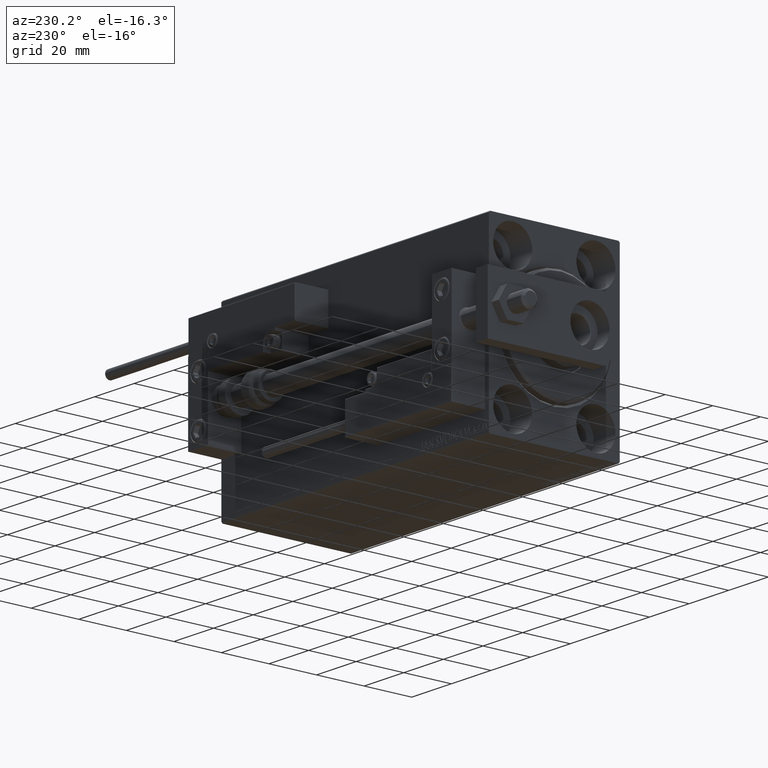
[diagram: clean part render]
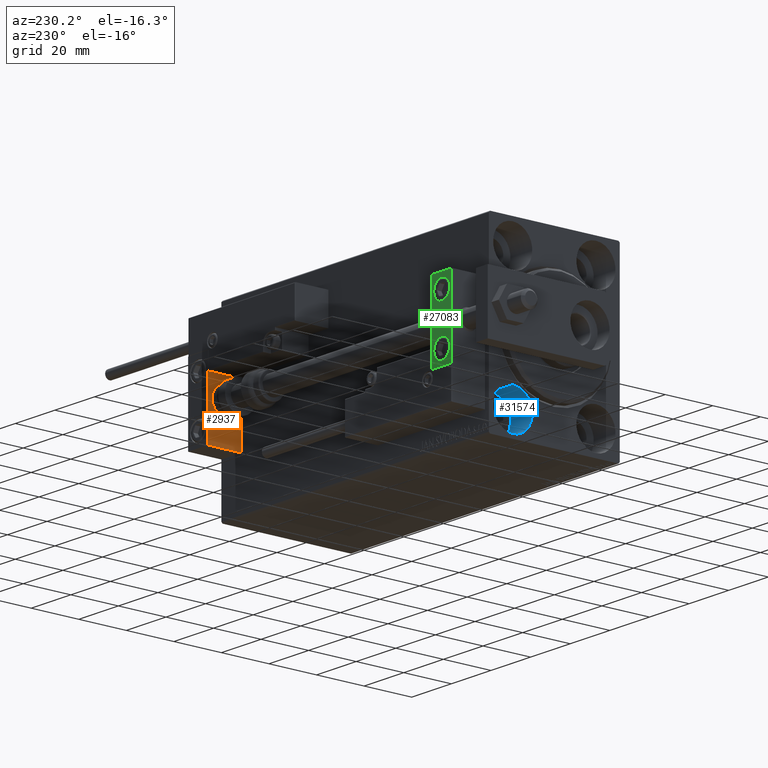
[diagram: same view with three faces highlighted in distinct colors, each labeled with its STEP entity id]
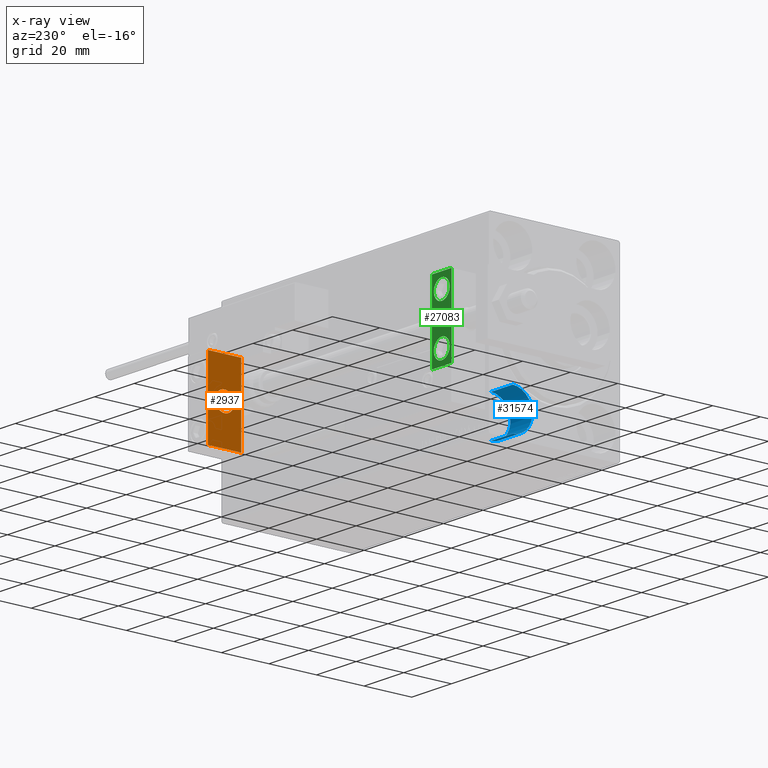
[diagram: x-ray of the same camera — body ghosted, the three highlighted faces saturated]
A machine part, auxiliary view with three faces highlighted in distinct colors.
The next image is the same camera in x-ray (body ghosted, the three faces saturated) — at least one of them is partly hidden behind the body in this view.
Their STEP definitions:

[orange] entity #2937 — the highlighted planar face has unit normal (-1, 0, 0).
#2937 = ADVANCED_FACE ( 'NONE', ( #11206, #15509 ), #42762, .T. ) ;
#3887 = DIRECTION ( 'NONE',  ( -1.000000000000000000, 0.000000000000000000, -0.000000000000000000 ) ) ;
#4360 = VECTOR ( 'NONE', #31342, 1000.000000000000000 ) ;
#4855 = VERTEX_POINT ( 'NONE', #38764 ) ;
#6292 = VERTEX_POINT ( 'NONE', #45020 ) ;
#7525 = VERTEX_POINT ( 'NONE', #45368 ) ;
#8040 = CARTESIAN_POINT ( 'NONE',  ( 0.000000000000000000, 7.000000000000000000, 15.99999999999999289 ) ) ;
#8173 = CARTESIAN_POINT ( 'NONE',  ( 0.000000000000000000, 0.000000000000000000, 0.000000000000000000 ) ) ;
#8823 = ORIENTED_EDGE ( 'NONE', *, *, #21573, .F. ) ;
#8987 = EDGE_LOOP ( 'NONE', ( #43491, #46773, #45683, #11533 ) ) ;
#9685 = EDGE_LOOP ( 'NONE', ( #37223, #8823 ) ) ;
#10074 = VECTOR ( 'NONE', #16587, 1000.000000000000000 ) ;
#10912 = CARTESIAN_POINT ( 'NONE',  ( 0.000000000000000000, 7.000000000000000000, -16.00000000000000711 ) ) ;
#11206 = FACE_BOUND ( 'NONE', #9685, .T. ) ;
#11533 = ORIENTED_EDGE ( 'NONE', *, *, #13229, .T. ) ;
#12146 = CARTESIAN_POINT ( 'NONE',  ( 0.000000000000000000, -7.000000000000000000, 15.99999999999999289 ) ) ;
#13229 = EDGE_CURVE ( 'NONE', #36104, #33145, #35080, .T. ) ;
#15303 = VECTOR ( 'NONE', #30130, 1000.000000000000000 ) ;
#15476 = AXIS2_PLACEMENT_3D ( 'NONE', #45282, #39836, #43603 ) ;
#15480 = CARTESIAN_POINT ( 'NONE',  ( 0.000000000000000000, 0.000000000000000000, 0.000000000000000000 ) ) ;
#15509 = FACE_OUTER_BOUND ( 'NONE', #8987, .T. ) ;
#15514 = VERTEX_POINT ( 'NONE', #12146 ) ;
#15529 = CARTESIAN_POINT ( 'NONE',  ( 0.000000000000000000, -7.000000000000000000, -16.00000000000000711 ) ) ;
#16587 = DIRECTION ( 'NONE',  ( 0.000000000000000000, -1.000000000000000000, 0.000000000000000000 ) ) ;
#16916 = VECTOR ( 'NONE', #26761, 1000.000000000000000 ) ;
#17087 = LINE ( 'NONE', #24420, #10074 ) ;
#19683 = AXIS2_PLACEMENT_3D ( 'NONE', #15480, #31148, #46502 ) ;
#21573 = EDGE_CURVE ( 'NONE', #6292, #7525, #43683, .T. ) ;
#23090 = CARTESIAN_POINT ( 'NONE',  ( 0.000000000000000000, 7.000000000000000000, -16.00000000000000711 ) ) ;
#24420 = CARTESIAN_POINT ( 'NONE',  ( 0.000000000000000000, 7.000000000000000000, 15.99999999999999289 ) ) ;
#26311 = CARTESIAN_POINT ( 'NONE',  ( 0.000000000000000000, -7.000000000000000000, 15.99999999999999289 ) ) ;
#26761 = DIRECTION ( 'NONE',  ( 0.000000000000000000, 0.000000000000000000, -1.000000000000000000 ) ) ;
#28043 = EDGE_CURVE ( 'NONE', #4855, #36104, #38104, .T. ) ;
#30130 = DIRECTION ( 'NONE',  ( 0.000000000000000000, -1.000000000000000000, 0.000000000000000000 ) ) ;
#30249 = AXIS2_PLACEMENT_3D ( 'NONE', #8173, #3887, #38984 ) ;
#31148 = DIRECTION ( 'NONE',  ( -1.000000000000000000, -0.000000000000000000, -0.000000000000000000 ) ) ;
#31342 = DIRECTION ( 'NONE',  ( 0.000000000000000000, 0.000000000000000000, -1.000000000000000000 ) ) ;
#33145 = VERTEX_POINT ( 'NONE', #15529 ) ;
#33414 = CIRCLE ( 'NONE', #19683, 4.000000000000000000 ) ;
#35080 = LINE ( 'NONE', #10912, #15303 ) ;
#36104 = VERTEX_POINT ( 'NONE', #23090 ) ;
#37223 = ORIENTED_EDGE ( 'NONE', *, *, #42385, .F. ) ;
#38104 = LINE ( 'NONE', #8040, #16916 ) ;
#38764 = CARTESIAN_POINT ( 'NONE',  ( 0.000000000000000000, 7.000000000000000000, 15.99999999999999289 ) ) ;
#38984 = DIRECTION ( 'NONE',  ( -0.000000000000000000, 0.000000000000000000, 1.000000000000000000 ) ) ;
#39836 = DIRECTION ( 'NONE',  ( -1.000000000000000000, -0.000000000000000000, -0.000000000000000000 ) ) ;
#42385 = EDGE_CURVE ( 'NONE', #7525, #6292, #33414, .T. ) ;
#42660 = EDGE_CURVE ( 'NONE', #15514, #33145, #49244, .T. ) ;
#42762 = PLANE ( 'NONE',  #30249 ) ;
#43491 = ORIENTED_EDGE ( 'NONE', *, *, #42660, .F. ) ;
#43603 = DIRECTION ( 'NONE',  ( 0.000000000000000000, 0.000000000000000000, 1.000000000000000000 ) ) ;
#43683 = CIRCLE ( 'NONE', #15476, 4.000000000000000000 ) ;
#45020 = CARTESIAN_POINT ( 'NONE',  ( 0.000000000000000000, 4.898587196589412829E-16, -4.000000000000000000 ) ) ;
#45282 = CARTESIAN_POINT ( 'NONE',  ( 0.000000000000000000, 0.000000000000000000, 0.000000000000000000 ) ) ;
#45368 = CARTESIAN_POINT ( 'NONE',  ( 0.000000000000000000, 0.000000000000000000, 4.000000000000000000 ) ) ;
#45372 = EDGE_CURVE ( 'NONE', #4855, #15514, #17087, .T. ) ;
#45683 = ORIENTED_EDGE ( 'NONE', *, *, #28043, .T. ) ;
#46502 = DIRECTION ( 'NONE',  ( 0.000000000000000000, 0.000000000000000000, 1.000000000000000000 ) ) ;
#46773 = ORIENTED_EDGE ( 'NONE', *, *, #45372, .F. ) ;
#49244 = LINE ( 'NONE', #26311, #4360 ) ;

[blue] entity #31574 — the highlighted cylindrical surface (edge-blend (fillet) strip) has radius 8.25 mm, axis along (-1, -0, -0).
#1254 = VECTOR ( 'NONE', #32001, 1000.000000000000000 ) ;
#2065 = EDGE_CURVE ( 'NONE', #14744, #20620, #27109, .T. ) ;
#2827 = DIRECTION ( 'NONE',  ( -1.000000000000000000, 0.000000000000000000, 0.000000000000000000 ) ) ;
#3844 = EDGE_CURVE ( 'NONE', #14744, #25018, #48534, .T. ) ;
#4353 = CARTESIAN_POINT ( 'NONE',  ( 11.00000000000000000, 17.49999999999999645, -35.75000000000000711 ) ) ;
#5077 = VECTOR ( 'NONE', #32249, 1000.000000000000000 ) ;
#5918 = FACE_OUTER_BOUND ( 'NONE', #47584, .T. ) ;
#10803 = CARTESIAN_POINT ( 'NONE',  ( 11.00000000000000000, 17.49999999999999645, -19.25000000000000355 ) ) ;
#13033 = CARTESIAN_POINT ( 'NONE',  ( 11.00000000000000000, 17.49999999999999645, -19.25000000000000355 ) ) ;
#13746 = CARTESIAN_POINT ( 'NONE',  ( 11.00000000000000000, 17.49999999999999645, -27.50000000000000355 ) ) ;
#13911 = ORIENTED_EDGE ( 'NONE', *, *, #3844, .T. ) ;
#14744 = VERTEX_POINT ( 'NONE', #4353 ) ;
#15308 = DIRECTION ( 'NONE',  ( 0.000000000000000000, 0.000000000000000000, 1.000000000000000000 ) ) ;
#15542 = ORIENTED_EDGE ( 'NONE', *, *, #26944, .T. ) ;
#17194 = CARTESIAN_POINT ( 'NONE',  ( 0.000000000000000000, 17.49999999999999645, -35.75000000000000711 ) ) ;
#17670 = AXIS2_PLACEMENT_3D ( 'NONE', #29986, #45585, #15308 ) ;
#17871 = CARTESIAN_POINT ( 'NONE',  ( 0.000000000000000000, 17.49999999999999645, -19.25000000000000355 ) ) ;
#20127 = CIRCLE ( 'NONE', #17670, 8.250000000000000000 ) ;
#20620 = VERTEX_POINT ( 'NONE', #10803 ) ;
#25018 = VERTEX_POINT ( 'NONE', #17194 ) ;
#25418 = VERTEX_POINT ( 'NONE', #17871 ) ;
#26944 = EDGE_CURVE ( 'NONE', #25018, #25418, #20127, .T. ) ;
#27109 = CIRCLE ( 'NONE', #32655, 8.250000000000000000 ) ;
#29332 = ORIENTED_EDGE ( 'NONE', *, *, #41064, .F. ) ;
#29395 = CARTESIAN_POINT ( 'NONE',  ( 11.00000000000000000, 17.49999999999999645, -35.75000000000000711 ) ) ;
#29425 = DIRECTION ( 'NONE',  ( -1.000000000000000000, -0.000000000000000000, -0.000000000000000000 ) ) ;
#29986 = CARTESIAN_POINT ( 'NONE',  ( 0.000000000000000000, 17.49999999999999645, -27.50000000000000355 ) ) ;
#30115 = DIRECTION ( 'NONE',  ( 0.000000000000000000, 0.000000000000000000, 1.000000000000000000 ) ) ;
#31574 = ADVANCED_FACE ( 'NONE', ( #5918 ), #48318, .F. ) ;
#32001 = DIRECTION ( 'NONE',  ( -1.000000000000000000, -0.000000000000000000, -0.000000000000000000 ) ) ;
#32249 = DIRECTION ( 'NONE',  ( -1.000000000000000000, -0.000000000000000000, -0.000000000000000000 ) ) ;
#32655 = AXIS2_PLACEMENT_3D ( 'NONE', #41203, #2827, #30115 ) ;
#36260 = AXIS2_PLACEMENT_3D ( 'NONE', #13746, #29425, #44539 ) ;
#41064 = EDGE_CURVE ( 'NONE', #20620, #25418, #44074, .T. ) ;
#41203 = CARTESIAN_POINT ( 'NONE',  ( 11.00000000000000000, 17.49999999999999645, -27.50000000000000355 ) ) ;
#44074 = LINE ( 'NONE', #13033, #5077 ) ;
#44539 = DIRECTION ( 'NONE',  ( 0.000000000000000000, 0.000000000000000000, 1.000000000000000000 ) ) ;
#45585 = DIRECTION ( 'NONE',  ( -1.000000000000000000, 0.000000000000000000, 0.000000000000000000 ) ) ;
#47584 = EDGE_LOOP ( 'NONE', ( #49854, #13911, #15542, #29332 ) ) ;
#48318 = CYLINDRICAL_SURFACE ( 'NONE', #36260, 8.250000000000000000 ) ;
#48534 = LINE ( 'NONE', #29395, #1254 ) ;
#49854 = ORIENTED_EDGE ( 'NONE', *, *, #2065, .F. ) ;

[green] entity #27083 — the highlighted planar face has unit normal (-0, 1, -0).
#120 = DIRECTION ( 'NONE',  ( 0.000000000000000000, 1.000000000000000000, -6.065466699219605527E-17 ) ) ;
#133 = EDGE_CURVE ( 'NONE', #40509, #4762, #28696, .T. ) ;
#895 = FACE_BOUND ( 'NONE', #14176, .T. ) ;
#1141 = VERTEX_POINT ( 'NONE', #21038 ) ;
#1291 = DIRECTION ( 'NONE',  ( 0.000000000000000000, 0.000000000000000000, 1.000000000000000000 ) ) ;
#2351 = DIRECTION ( 'NONE',  ( -1.000000000000000000, -0.000000000000000000, -0.000000000000000000 ) ) ;
#3530 = DIRECTION ( 'NONE',  ( 1.848892746611746419E-32, -1.000000000000000000, 6.616381192988677562E-17 ) ) ;
#3695 = AXIS2_PLACEMENT_3D ( 'NONE', #7936, #120, #38250 ) ;
#4762 = VERTEX_POINT ( 'NONE', #18593 ) ;
#4855 = VERTEX_POINT ( 'NONE', #38764 ) ;
#5318 = CARTESIAN_POINT ( 'NONE',  ( 5.000000000000000888, 6.999999999999999112, -10.00000000000000178 ) ) ;
#6562 = ORIENTED_EDGE ( 'NONE', *, *, #33409, .T. ) ;
#6842 = EDGE_CURVE ( 'NONE', #1141, #49902, #36383, .T. ) ;
#7936 = CARTESIAN_POINT ( 'NONE',  ( 5.000000000000000888, 6.999999999999999112, -10.00000000000000178 ) ) ;
#8040 = CARTESIAN_POINT ( 'NONE',  ( 0.000000000000000000, 7.000000000000000000, 15.99999999999999289 ) ) ;
#8054 = CARTESIAN_POINT ( 'NONE',  ( 5.000000000000000888, 7.000000000000000888, 10.00000000000000178 ) ) ;
#9745 = ORIENTED_EDGE ( 'NONE', *, *, #16599, .F. ) ;
#12391 = EDGE_LOOP ( 'NONE', ( #38438, #33744, #23722, #6562 ) ) ;
#14176 = EDGE_LOOP ( 'NONE', ( #17315, #23647 ) ) ;
#14710 = DIRECTION ( 'NONE',  ( 1.848892746611746419E-32, -1.000000000000000000, 6.616381192988677562E-17 ) ) ;
#16301 = CARTESIAN_POINT ( 'NONE',  ( 10.00000000000000000, 7.000000000000000000, 15.99999999999999289 ) ) ;
#16599 = EDGE_CURVE ( 'NONE', #4762, #40509, #43469, .T. ) ;
#16916 = VECTOR ( 'NONE', #26761, 1000.000000000000000 ) ;
#17028 = CARTESIAN_POINT ( 'NONE',  ( 10.00000000000000000, 7.000000000000000000, 15.99999999999999289 ) ) ;
#17315 = ORIENTED_EDGE ( 'NONE', *, *, #25246, .T. ) ;
#17719 = AXIS2_PLACEMENT_3D ( 'NONE', #5318, #29313, #1291 ) ;
#18144 = EDGE_CURVE ( 'NONE', #32503, #43866, #35484, .T. ) ;
#18593 = CARTESIAN_POINT ( 'NONE',  ( 5.000000000000001776, 6.999999999999999112, -14.00000000000000178 ) ) ;
#19496 = CARTESIAN_POINT ( 'NONE',  ( 5.000000000000000888, 7.000000000000000888, 14.00000000000000178 ) ) ;
#20102 = FACE_BOUND ( 'NONE', #37052, .T. ) ;
#21038 = CARTESIAN_POINT ( 'NONE',  ( 10.00000000000000000, 7.000000000000000000, 15.99999999999999289 ) ) ;
#21563 = LINE ( 'NONE', #36951, #33919 ) ;
#22307 = DIRECTION ( 'NONE',  ( 0.000000000000000000, 0.000000000000000000, 1.000000000000000000 ) ) ;
#23090 = CARTESIAN_POINT ( 'NONE',  ( 0.000000000000000000, 7.000000000000000000, -16.00000000000000711 ) ) ;
#23647 = ORIENTED_EDGE ( 'NONE', *, *, #18144, .T. ) ;
#23722 = ORIENTED_EDGE ( 'NONE', *, *, #6842, .T. ) ;
#24064 = CIRCLE ( 'NONE', #28107, 4.000000000000000000 ) ;
#24133 = AXIS2_PLACEMENT_3D ( 'NONE', #16301, #31722, #47073 ) ;
#24535 = ORIENTED_EDGE ( 'NONE', *, *, #133, .F. ) ;
#25246 = EDGE_CURVE ( 'NONE', #43866, #32503, #24064, .T. ) ;
#25325 = CARTESIAN_POINT ( 'NONE',  ( 5.000000000000000888, 7.000000000000000888, 10.00000000000000178 ) ) ;
#26761 = DIRECTION ( 'NONE',  ( 0.000000000000000000, 0.000000000000000000, -1.000000000000000000 ) ) ;
#27083 = ADVANCED_FACE ( 'NONE', ( #35987, #20102, #895 ), #27440, .T. ) ;
#27440 = PLANE ( 'NONE',  #24133 ) ;
#28043 = EDGE_CURVE ( 'NONE', #4855, #36104, #38104, .T. ) ;
#28107 = AXIS2_PLACEMENT_3D ( 'NONE', #8054, #3530, #34080 ) ;
#28696 = CIRCLE ( 'NONE', #3695, 4.000000000000000888 ) ;
#29313 = DIRECTION ( 'NONE',  ( 0.000000000000000000, 1.000000000000000000, -6.065466699219605527E-17 ) ) ;
#29317 = VECTOR ( 'NONE', #48779, 1000.000000000000000 ) ;
#31183 = CARTESIAN_POINT ( 'NONE',  ( 10.00000000000000000, 7.000000000000000000, 15.99999999999999289 ) ) ;
#31463 = AXIS2_PLACEMENT_3D ( 'NONE', #25325, #14710, #22307 ) ;
#31722 = DIRECTION ( 'NONE',  ( -0.000000000000000000, 1.000000000000000000, 0.000000000000000000 ) ) ;
#32503 = VERTEX_POINT ( 'NONE', #49274 ) ;
#33409 = EDGE_CURVE ( 'NONE', #49902, #36104, #21563, .T. ) ;
#33631 = CARTESIAN_POINT ( 'NONE',  ( 5.000000000000000888, 6.999999999999999112, -6.000000000000000888 ) ) ;
#33730 = CARTESIAN_POINT ( 'NONE',  ( 10.00000000000000000, 7.000000000000000000, -16.00000000000000711 ) ) ;
#33744 = ORIENTED_EDGE ( 'NONE', *, *, #40653, .F. ) ;
#33919 = VECTOR ( 'NONE', #2351, 1000.000000000000000 ) ;
#34080 = DIRECTION ( 'NONE',  ( 0.000000000000000000, 0.000000000000000000, 1.000000000000000000 ) ) ;
#35484 = CIRCLE ( 'NONE', #31463, 4.000000000000000000 ) ;
#35987 = FACE_OUTER_BOUND ( 'NONE', #12391, .T. ) ;
#36104 = VERTEX_POINT ( 'NONE', #23090 ) ;
#36383 = LINE ( 'NONE', #31183, #39285 ) ;
#36951 = CARTESIAN_POINT ( 'NONE',  ( 10.00000000000000000, 7.000000000000000000, -16.00000000000000711 ) ) ;
#37052 = EDGE_LOOP ( 'NONE', ( #24535, #9745 ) ) ;
#38104 = LINE ( 'NONE', #8040, #16916 ) ;
#38250 = DIRECTION ( 'NONE',  ( 0.000000000000000000, 0.000000000000000000, 1.000000000000000000 ) ) ;
#38438 = ORIENTED_EDGE ( 'NONE', *, *, #28043, .F. ) ;
#38764 = CARTESIAN_POINT ( 'NONE',  ( 0.000000000000000000, 7.000000000000000000, 15.99999999999999289 ) ) ;
#39285 = VECTOR ( 'NONE', #43018, 1000.000000000000000 ) ;
#40509 = VERTEX_POINT ( 'NONE', #33631 ) ;
#40653 = EDGE_CURVE ( 'NONE', #1141, #4855, #44013, .T. ) ;
#43018 = DIRECTION ( 'NONE',  ( 0.000000000000000000, 0.000000000000000000, -1.000000000000000000 ) ) ;
#43469 = CIRCLE ( 'NONE', #17719, 4.000000000000000888 ) ;
#43866 = VERTEX_POINT ( 'NONE', #19496 ) ;
#44013 = LINE ( 'NONE', #17028, #29317 ) ;
#47073 = DIRECTION ( 'NONE',  ( 0.000000000000000000, -0.000000000000000000, 1.000000000000000000 ) ) ;
#48779 = DIRECTION ( 'NONE',  ( -1.000000000000000000, -0.000000000000000000, -0.000000000000000000 ) ) ;
#49274 = CARTESIAN_POINT ( 'NONE',  ( 5.000000000000001776, 7.000000000000000888, 6.000000000000000888 ) ) ;
#49902 = VERTEX_POINT ( 'NONE', #33730 ) ;